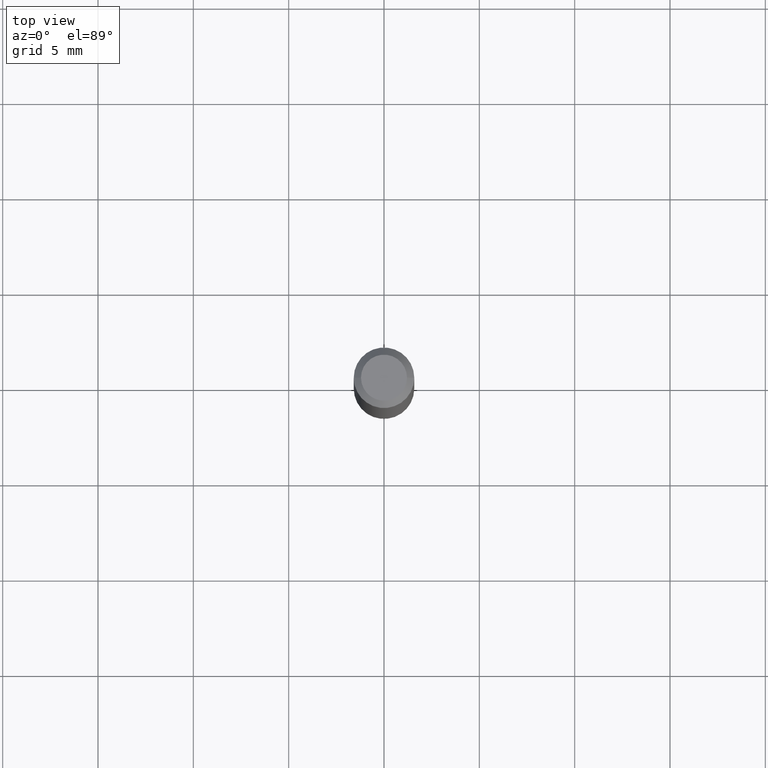
[diagram: clean part render]
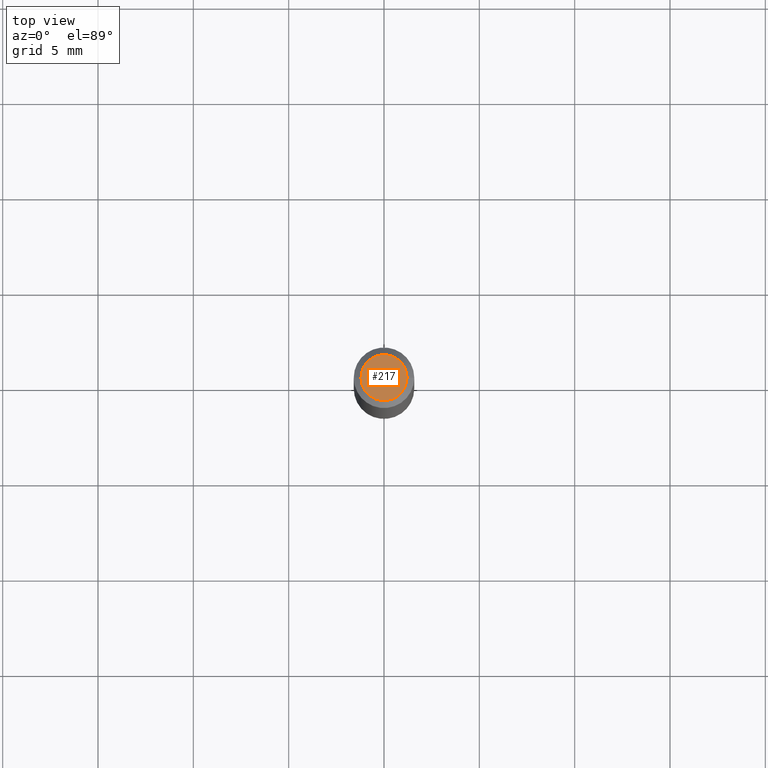
[diagram: same view with one face highlighted and labeled with its STEP entity id]
A machine part, top view. The second image highlights one B-rep face of the part: STEP entity #217.
In plain terms, the highlighted planar face has unit normal (0, -0, -1).
Its self-contained STEP definition (entity closure, byte-faithful):
#33 = CIRCLE ( 'NONE', #319, 0.04750000000000000749 ) ;
#52 = DIRECTION ( 'NONE',  ( 2.438088387897960049E-29, -3.491481338843145188E-15, -1.000000000000000000 ) ) ;
#70 = CARTESIAN_POINT ( 'NONE',  ( -6.680649051745406845E-45, 9.538196290434862081E-31, 2.731847993664263218E-16 ) ) ;
#106 = DIRECTION ( 'NONE',  ( 1.000000000000000000, -6.982962677686266711E-15, 4.852736867747365086E-29 ) ) ;
#144 = AXIS2_PLACEMENT_3D ( 'NONE', #254, #52, #298 ) ;
#155 = CIRCLE ( 'NONE', #389, 0.04750000000000000749 ) ;
#213 = EDGE_CURVE ( 'NONE', #505, #219, #33, .T. ) ;
#217 = ADVANCED_FACE ( 'NONE', ( #413 ), #415, .F. ) ;
#219 = VERTEX_POINT ( 'NONE', #495 ) ;
#254 = CARTESIAN_POINT ( 'NONE',  ( 3.316907271900976589E-16, 0.04750000000000000749, -2.925296391183627249E-17 ) ) ;
#298 = DIRECTION ( 'NONE',  ( -1.000000000000000000, 6.982962677686265922E-15, -4.876176775795935793E-29 ) ) ;
#319 = AXIS2_PLACEMENT_3D ( 'NONE', #440, #476, #106 ) ;
#325 = DIRECTION ( 'NONE',  ( 1.000000000000000000, -6.982962677686266711E-15, 4.852736867747365086E-29 ) ) ;
#366 = DIRECTION ( 'NONE',  ( -2.445468806185136597E-29, 3.491481338843145583E-15, 1.000000000000000000 ) ) ;
#389 = AXIS2_PLACEMENT_3D ( 'NONE', #70, #366, #325 ) ;
#413 = FACE_OUTER_BOUND ( 'NONE', #517, .T. ) ;
#415 = PLANE ( 'NONE',  #144 ) ;
#433 = ORIENTED_EDGE ( 'NONE', *, *, #213, .T. ) ;
#440 = CARTESIAN_POINT ( 'NONE',  ( -6.680649051745406845E-45, 9.538196290434862081E-31, 2.731847993664263218E-16 ) ) ;
#460 = ORIENTED_EDGE ( 'NONE', *, *, #461, .T. ) ;
#461 = EDGE_CURVE ( 'NONE', #219, #505, #155, .T. ) ;
#476 = DIRECTION ( 'NONE',  ( -2.445468806185136597E-29, 3.491481338843145583E-15, 1.000000000000000000 ) ) ;
#494 = CARTESIAN_POINT ( 'NONE',  ( 0.04750000000000000749, -4.035134999187568762E-16, 2.731847993664288856E-16 ) ) ;
#495 = CARTESIAN_POINT ( 'NONE',  ( -0.04750000000000000749, 3.578768372314221353E-16, 2.731847993664239060E-16 ) ) ;
#505 = VERTEX_POINT ( 'NONE', #494 ) ;
#517 = EDGE_LOOP ( 'NONE', ( #460, #433 ) ) ;